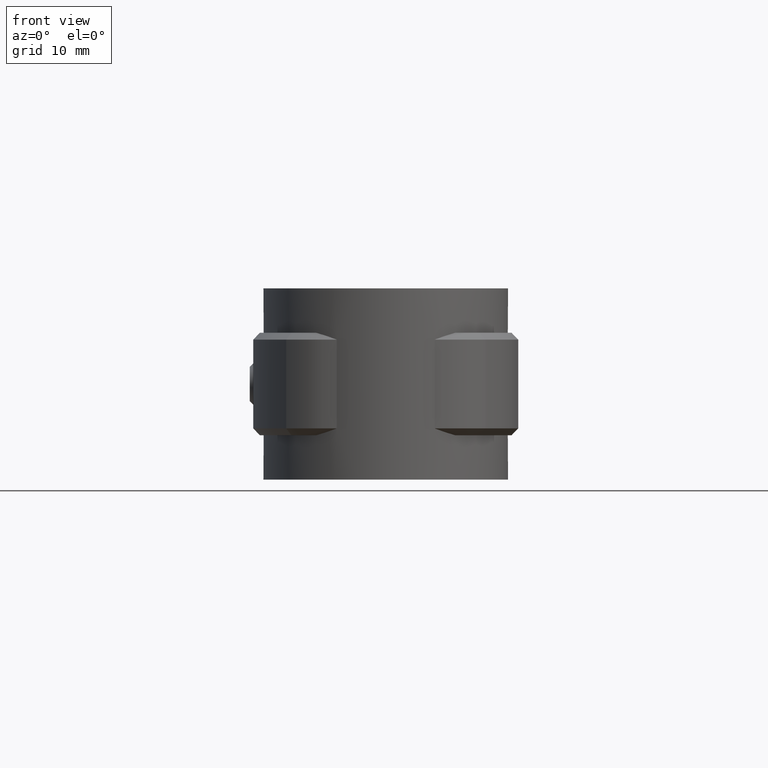
[diagram: clean part render]
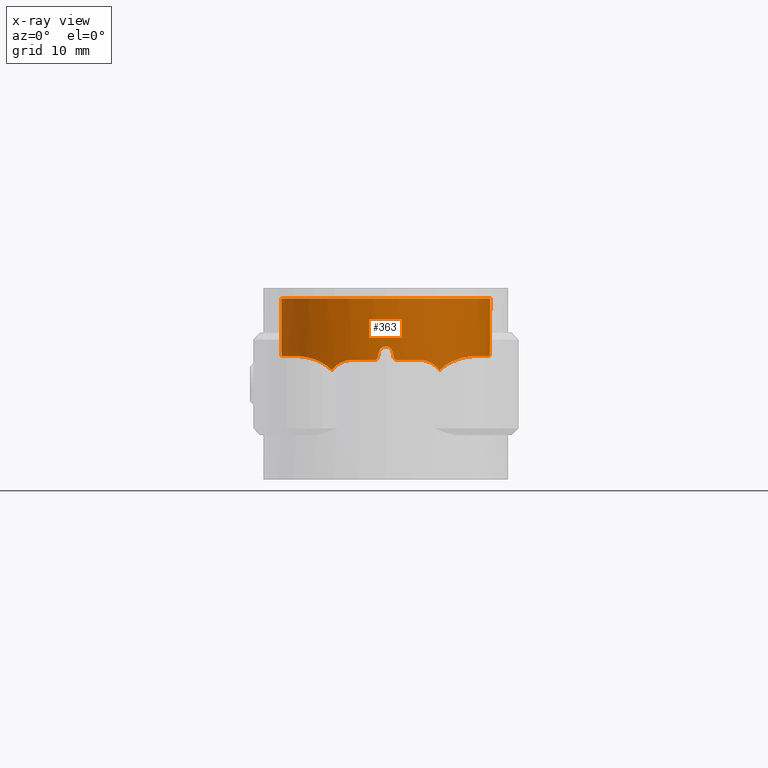
[diagram: x-ray — body ghosted, one internal face saturated and labeled with its STEP entity id]
A machine part, front view, then the same camera in x-ray: the body is ghosted and one INTERNAL B-rep face — a face not visible from any outside direction — is saturated and labeled: STEP entity #363.
In plain terms, the highlighted cylindrical surface (partial cylindrical patch) has radius 15.3 mm, axis along (0, 0, 1).
Its self-contained STEP definition (entity closure, byte-faithful):
#363 = ADVANCED_FACE( '', ( #689 ), #690, .T. );
#689 = FACE_OUTER_BOUND( '', #1386, .T. );
#690 = CYLINDRICAL_SURFACE( '', #1387, 15.3000000000000 );
#1386 = EDGE_LOOP( '', ( #2599, #2600, #2601, #2602, #2603, #2604, #2605, #2606, #2607, #2608, #2609, #2610, #2611, #2612, #2613, #2614 ) );
#1387 = AXIS2_PLACEMENT_3D( '', #2615, #2616, #2617 );
#2599 = ORIENTED_EDGE( '', *, *, #5970, .F. );
#2600 = ORIENTED_EDGE( '', *, *, #5971, .F. );
#2601 = ORIENTED_EDGE( '', *, *, #5972, .F. );
#2602 = ORIENTED_EDGE( '', *, *, #5973, .F. );
#2603 = ORIENTED_EDGE( '', *, *, #5974, .F. );
#2604 = ORIENTED_EDGE( '', *, *, #5975, .T. );
#2605 = ORIENTED_EDGE( '', *, *, #5976, .F. );
#2606 = ORIENTED_EDGE( '', *, *, #5977, .F. );
#2607 = ORIENTED_EDGE( '', *, *, #5978, .F. );
#2608 = ORIENTED_EDGE( '', *, *, #5979, .F. );
#2609 = ORIENTED_EDGE( '', *, *, #5980, .F. );
#2610 = ORIENTED_EDGE( '', *, *, #5981, .F. );
#2611 = ORIENTED_EDGE( '', *, *, #5982, .F. );
#2612 = ORIENTED_EDGE( '', *, *, #5983, .F. );
#2613 = ORIENTED_EDGE( '', *, *, #5984, .F. );
#2614 = ORIENTED_EDGE( '', *, *, #5985, .F. );
#2615 = CARTESIAN_POINT( '', ( 0.000000000000000, 0.000000000000000, 0.000000000000000 ) );
#2616 = DIRECTION( '', ( 0.000000000000000, 0.000000000000000, 1.00000000000000 ) );
#2617 = DIRECTION( '', ( 1.00000000000000, -6.12303176911189E-017, 0.000000000000000 ) );
#5970 = EDGE_CURVE( '', #6879, #6880, #6881, .T. );
#5971 = EDGE_CURVE( '', #6882, #6879, #6883, .T. );
#5972 = EDGE_CURVE( '', #6884, #6882, #6885, .T. );
#5973 = EDGE_CURVE( '', #6886, #6884, #6887, .T. );
#5974 = EDGE_CURVE( '', #6888, #6886, #6889, .F. );
#5975 = EDGE_CURVE( '', #6888, #6890, #6891, .T. );
#5976 = EDGE_CURVE( '', #6892, #6890, #6893, .T. );
#5977 = EDGE_CURVE( '', #6894, #6892, #6895, .T. );
#5978 = EDGE_CURVE( '', #6896, #6894, #6897, .T. );
#5979 = EDGE_CURVE( '', #6898, #6896, #6899, .T. );
#5980 = EDGE_CURVE( '', #6900, #6898, #6901, .T. );
#5981 = EDGE_CURVE( '', #6902, #6900, #6903, .T. );
#5982 = EDGE_CURVE( '', #6904, #6902, #6905, .T. );
#5983 = EDGE_CURVE( '', #6906, #6904, #6907, .T. );
#5984 = EDGE_CURVE( '', #6908, #6906, #6909, .T. );
#5985 = EDGE_CURVE( '', #6880, #6908, #6910, .T. );
#6879 = VERTEX_POINT( '', #8393 );
#6880 = VERTEX_POINT( '', #8394 );
#6881 = B_SPLINE_CURVE_WITH_KNOTS( '', 3, ( #8395, #8396, #8397, #8398, #8399, #8400, #8401, #8402, #8403, #8404 ), .UNSPECIFIED., .F., .F., ( 4, 2, 2, 2, 4 ), ( 0.00793069399882955, 0.00882965665763709, 0.00972861931644463, 0.0106275819752522, 0.0115265446340597 ), .UNSPECIFIED. );
#6882 = VERTEX_POINT( '', #8405 );
#6883 = B_SPLINE_CURVE_WITH_KNOTS( '', 3, ( #8406, #8407, #8408, #8409, #8410, #8411, #8412, #8413, #8414, #8415, #8416, #8417, #8418, #8419 ), .UNSPECIFIED., .F., .F., ( 4, 2, 2, 2, 2, 2, 4 ), ( 0.000000000000000, 0.00173545168588772, 0.00347090337177544, 0.00433862921471931, 0.00520635505766317, 0.00607408090060704, 0.00694180674355090 ), .UNSPECIFIED. );
#6884 = VERTEX_POINT( '', #8420 );
#6885 = B_SPLINE_CURVE_WITH_KNOTS( '', 3, ( #8421, #8422, #8423, #8424, #8425, #8426, #8427, #8428, #8429, #8430, #8431, #8432, #8433, #8434, #8435, #8436, #8437, #8438, #8439, #8440, #8441, #8442, #8443, #8444 ), .UNSPECIFIED., .F., .F., ( 4, 2, 2, 2, 2, 2, 2, 2, 2, 2, 2, 4 ), ( 0.000000000000000, 0.00337849067238585, 0.00506773600857877, 0.00675698134477170, 0.00844622668096462, 0.0101354720171575, 0.0135139626895434, 0.0152032080257363, 0.0168924533619292, 0.0202709440343151, 0.0236494347067009, 0.0270279253790868 ), .UNSPECIFIED. );
#6886 = VERTEX_POINT( '', #8445 );
#6887 = LINE( '', #8446, #8447 );
#6888 = VERTEX_POINT( '', #8448 );
#6889 = CIRCLE( '', #8449, 15.3000000000000 );
#6890 = VERTEX_POINT( '', #8450 );
#6891 = LINE( '', #8451, #8452 );
#6892 = VERTEX_POINT( '', #8453 );
#6893 = B_SPLINE_CURVE_WITH_KNOTS( '', 3, ( #8454, #8455, #8456, #8457, #8458, #8459, #8460, #8461, #8462, #8463, #8464, #8465, #8466, #8467, #8468, #8469, #8470, #8471, #8472, #8473, #8474, #8475, #8476, #8477 ), .UNSPECIFIED., .F., .F., ( 4, 2, 2, 2, 2, 2, 2, 2, 2, 2, 2, 4 ), ( 0.000000000000000, 0.00337848974913548, 0.00506773462370322, 0.00675697949827095, 0.00844622437283869, 0.0101354692474064, 0.0135139589965419, 0.0152032038711096, 0.0168924487456774, 0.0202709384948129, 0.0236494282439483, 0.0270279179930838 ), .UNSPECIFIED. );
#6894 = VERTEX_POINT( '', #8478 );
#6895 = B_SPLINE_CURVE_WITH_KNOTS( '', 3, ( #8479, #8480, #8481, #8482, #8483, #8484, #8485, #8486, #8487, #8488, #8489, #8490, #8491, #8492, #8493, #8494 ), .UNSPECIFIED., .F., .F., ( 4, 2, 2, 2, 2, 2, 2, 4 ), ( 0.0115037032813335, 0.0123705324741521, 0.0132373616669708, 0.0141041908597894, 0.0149710200526081, 0.0158378492454268, 0.0167046784382454, 0.0184383368238828 ), .UNSPECIFIED. );
#6896 = VERTEX_POINT( '', #8495 );
#6897 = B_SPLINE_CURVE_WITH_KNOTS( '', 3, ( #8496, #8497, #8498, #8499, #8500, #8501, #8502, #8503, #8504, #8505 ), .UNSPECIFIED., .F., .F., ( 4, 2, 2, 2, 4 ), ( 3.12731722069275E-018, 0.000902552391410097, 0.00180510478282019, 0.00270765717423028, 0.00361020956564038 ), .UNSPECIFIED. );
#6898 = VERTEX_POINT( '', #8506 );
#6899 = CIRCLE( '', #8507, 15.3000000000000 );
#6900 = VERTEX_POINT( '', #8508 );
#6901 = B_SPLINE_CURVE_WITH_KNOTS( '', 3, ( #8509, #8510, #8511, #8512, #8513, #8514 ), .UNSPECIFIED., .F., .F., ( 4, 2, 4 ), ( 2.04566856771261E-018, 0.000336655613353345, 0.000673311226706687 ), .UNSPECIFIED. );
#6902 = VERTEX_POINT( '', #8515 );
#6903 = ELLIPSE( '', #8516, 69.7000711111876, 15.3000000000000 );
#6904 = VERTEX_POINT( '', #8517 );
#6905 = B_SPLINE_CURVE_WITH_KNOTS( '', 3, ( #8518, #8519, #8520, #8521, #8522, #8523, #8524, #8525, #8526, #8527 ), .UNSPECIFIED., .F., .F., ( 4, 2, 2, 2, 4 ), ( 0.000000000000000, 0.000671750243631357, 0.00134350048726271, 0.00201525073089407, 0.00268700097452543 ), .UNSPECIFIED. );
#6906 = VERTEX_POINT( '', #8528 );
#6907 = ELLIPSE( '', #8529, 69.7000355555817, 15.3000000000000 );
#6908 = VERTEX_POINT( '', #8530 );
#6909 = B_SPLINE_CURVE_WITH_KNOTS( '', 3, ( #8531, #8532, #8533, #8534, #8535, #8536 ), .UNSPECIFIED., .F., .F., ( 4, 2, 4 ), ( 8.20849171219253E-018, 0.000336638865399035, 0.000673277730798061 ), .UNSPECIFIED. );
#6910 = CIRCLE( '', #8537, 15.3000000000000 );
#8393 = CARTESIAN_POINT( '', ( 7.87194993485722, -13.1195428359036, -10.4995241636867 ) );
#8394 = CARTESIAN_POINT( '', ( 5.00000000000000, -14.4599446748596, -9.00000000000000 ) );
#8395 = CARTESIAN_POINT( '', ( 7.87194993485716, -13.1195428359033, -10.4995241636866 ) );
#8396 = CARTESIAN_POINT( '', ( 7.70865094498074, -13.2175250208619, -10.2650866789519 ) );
#8397 = CARTESIAN_POINT( '', ( 7.51776101368131, -13.3277933746706, -10.0528629646949 ) );
#8398 = CARTESIAN_POINT( '', ( 7.09897570629181, -13.5554915373150, -9.68541278764146 ) );
#8399 = CARTESIAN_POINT( '', ( 6.86622150503558, -13.6754961272244, -9.52611791614011 ) );
#8400 = CARTESIAN_POINT( '', ( 6.37510165947340, -13.9112282316595, -9.26954294554568 ) );
#8401 = CARTESIAN_POINT( '', ( 6.11639506588634, -14.0273663019708, -9.17091319151234 ) );
#8402 = CARTESIAN_POINT( '', ( 5.57027714878039, -14.2530455151676, -9.03532961233526 ) );
#8403 = CARTESIAN_POINT( '', ( 5.28764682543656, -14.3604813532825, -8.99999999999998 ) );
#8404 = CARTESIAN_POINT( '', ( 5.00000000000000, -14.4599446748596, -8.99999999999997 ) );
#8405 = CARTESIAN_POINT( '', ( 12.6110727878860, -8.66318897050281, -8.45031892622464 ) );
#8406 = CARTESIAN_POINT( '', ( 12.6110727878860, -8.66318897050281, -8.45031892622464 ) );
#8407 = CARTESIAN_POINT( '', ( 12.2787524010647, -9.14695038923338, -8.46550990858840 ) );
#8408 = CARTESIAN_POINT( '', ( 11.9235910034446, -9.60450669304155, -8.51116083134943 ) );
#8409 = CARTESIAN_POINT( '', ( 11.1715127557968, -10.4697599772474, -8.66791811163752 ) );
#8410 = CARTESIAN_POINT( '', ( 10.7745882532920, -10.8773725679151, -8.77941280152085 ) );
#8411 = CARTESIAN_POINT( '', ( 10.1511190736469, -11.4509618833930, -9.01216554269244 ) );
#8412 = CARTESIAN_POINT( '', ( 9.93894791792869, -11.6354027845567, -9.10085375859678 ) );
#8413 = CARTESIAN_POINT( '', ( 9.51537023707728, -11.9842819111331, -9.30141862969721 ) );
#8414 = CARTESIAN_POINT( '', ( 9.30295281880300, -12.1496614772324, -9.41356554006848 ) );
#8415 = CARTESIAN_POINT( '', ( 8.87977396000486, -12.4622959192695, -9.66695585382485 ) );
#8416 = CARTESIAN_POINT( '', ( 8.66770891528999, -12.6103831388595, -9.80908779401239 ) );
#8417 = CARTESIAN_POINT( '', ( 8.25637209485775, -12.8834490948769, -10.1274435297160 ) );
#8418 = CARTESIAN_POINT( '', ( 8.05799841358993, -13.0079105688069, -10.3025626028772 ) );
#8419 = CARTESIAN_POINT( '', ( 7.87194993485673, -13.1195428359036, -10.4995241636863 ) );
#8420 = CARTESIAN_POINT( '', ( 5.95508982035928, 14.0935057821485, -8.45226729138235 ) );
#8421 = CARTESIAN_POINT( '', ( 5.95508982035928, 14.0935057821485, -8.45226729138233 ) );
#8422 = CARTESIAN_POINT( '', ( 7.00540709996952, 13.6497032367324, -8.45390515077287 ) );
#8423 = CARTESIAN_POINT( '', ( 7.98833917484386, 13.0977071765000, -8.45433456352181 ) );
#8424 = CARTESIAN_POINT( '', ( 9.36474915869099, 12.1123840431278, -8.45230022380100 ) );
#8425 = CARTESIAN_POINT( '', ( 9.80897304357575, 11.7557295501313, -8.45130217704716 ) );
#8426 = CARTESIAN_POINT( '', ( 10.6542534858052, 10.9954541554968, -8.45011867942905 ) );
#8427 = CARTESIAN_POINT( '', ( 11.0522173135953, 10.5950394562952, -8.45024402883691 ) );
#8428 = CARTESIAN_POINT( '', ( 11.8003331836054, 9.75492211057010, -8.45109332326582 ) );
#8429 = CARTESIAN_POINT( '', ( 12.1504813178563, 9.31521621707749, -8.45168265912335 ) );
#8430 = CARTESIAN_POINT( '', ( 12.8027128447681, 8.39630831025688, -8.45228185336801 ) );
#8431 = CARTESIAN_POINT( '', ( 13.1058013748109, 7.91527764298565, -8.45228810635509 ) );
#8432 = CARTESIAN_POINT( '', ( 13.9332426752597, 6.42256552465585, -8.45140198263701 ) );
#8433 = CARTESIAN_POINT( '', ( 14.3656891301544, 5.38385352930454, -8.44980454309737 ) );
#8434 = CARTESIAN_POINT( '', ( 14.8408836696453, 3.76236596523588, -8.45110774447446 ) );
#8435 = CARTESIAN_POINT( '', ( 14.9703352046328, 3.20986824873691, -8.45178080891350 ) );
#8436 = CARTESIAN_POINT( '', ( 15.1675027346726, 2.08831298109673, -8.45256434646519 ) );
#8437 = CARTESIAN_POINT( '', ( 15.2339943467144, 1.52711420599460, -8.45266538063568 ) );
#8438 = CARTESIAN_POINT( '', ( 15.3405272523831, -0.157701726061642, -8.45194690359650 ) );
#8439 = CARTESIAN_POINT( '', ( 15.2886124364511, -1.28348506083063, -8.44984870711149 ) );
#8440 = CARTESIAN_POINT( '', ( 14.9297054039767, -3.53452976842064, -8.45101732554135 ) );
#8441 = CARTESIAN_POINT( '', ( 14.6293632335126, -4.61942105654775, -8.45276188964351 ) );
#8442 = CARTESIAN_POINT( '', ( 13.7956940440721, -6.71089750764227, -8.45205521599975 ) );
#8443 = CARTESIAN_POINT( '', ( 13.2566961461038, -7.72334993527380, -8.44956537244370 ) );
#8444 = CARTESIAN_POINT( '', ( 12.6110727878860, -8.66318897050281, -8.45031892622464 ) );
#8445 = CARTESIAN_POINT( '', ( 5.95508982035929, 14.0935057821485, 0.000000000000000 ) );
#8446 = CARTESIAN_POINT( '', ( 5.95508982035928, 14.0935057821485, 0.000000000000000 ) );
#8447 = VECTOR( '', #11951, 1000.00000000000 );
#8448 = CARTESIAN_POINT( '', ( -5.95508982035928, 14.0935057821485, 0.000000000000000 ) );
#8449 = AXIS2_PLACEMENT_3D( '', #11952, #11953, #11954 );
#8450 = CARTESIAN_POINT( '', ( -5.95508982035929, 14.0935057821485, -8.45226729138233 ) );
#8451 = CARTESIAN_POINT( '', ( -5.95508982035929, 14.0935057821485, 0.000000000000000 ) );
#8452 = VECTOR( '', #11955, 1000.00000000000 );
#8453 = CARTESIAN_POINT( '', ( -12.6110727878862, -8.66318897050286, -8.45031892622483 ) );
#8454 = CARTESIAN_POINT( '', ( -12.6110727878860, -8.66318897050281, -8.45031892622465 ) );
#8455 = CARTESIAN_POINT( '', ( -13.2566959368118, -7.72335023994181, -8.44956537268799 ) );
#8456 = CARTESIAN_POINT( '', ( -13.7872519999963, -6.72868324598035, -8.45203498790222 ) );
#8457 = CARTESIAN_POINT( '', ( -14.4157629811428, -5.15695177944743, -8.45258721794598 ) );
#8458 = CARTESIAN_POINT( '', ( -14.5977817794948, -4.61713079014230, -8.45237562317452 ) );
#8459 = CARTESIAN_POINT( '', ( -14.9001468151511, -3.52118651905475, -8.45143865004645 ) );
#8460 = CARTESIAN_POINT( '', ( -15.0196155399717, -2.96943056561901, -8.45072674235892 ) );
#8461 = CARTESIAN_POINT( '', ( -15.1971057085317, -1.85858734965746, -8.45014450833671 ) );
#8462 = CARTESIAN_POINT( '', ( -15.2551221059123, -1.29949949571398, -8.45053515373791 ) );
#8463 = CARTESIAN_POINT( '', ( -15.3093824020463, -0.173953653516127, -8.45159166864484 ) );
#8464 = CARTESIAN_POINT( '', ( -15.3054876661238, 0.394585777385038, -8.45218127623429 ) );
#8465 = CARTESIAN_POINT( '', ( -15.1981365292448, 2.09791529208462, -8.45291107734749 ) );
#8466 = CARTESIAN_POINT( '', ( -15.0026932763093, 3.20594681079866, -8.45156493687628 ) );
#8467 = CARTESIAN_POINT( '', ( -14.5292207707281, 4.82793630028559, -8.45024644846663 ) );
#8468 = CARTESIAN_POINT( '', ( -14.3405455744282, 5.36310958643268, -8.45027416187245 ) );
#8469 = CARTESIAN_POINT( '', ( -13.9022635465869, 6.41414531247766, -8.45111113771660 ) );
#8470 = CARTESIAN_POINT( '', ( -13.6558614780494, 6.92272416588369, -8.45169797640167 ) );
#8471 = CARTESIAN_POINT( '', ( -12.8377048184716, 8.39940386766398, -8.45257732633630 ) );
#8472 = CARTESIAN_POINT( '', ( -12.1873217869345, 9.31977448680832, -8.45153540932948 ) );
#8473 = CARTESIAN_POINT( '', ( -10.6719581828801, 11.0226275164369, -8.44980959461245 ) );
#8474 = CARTESIAN_POINT( '', ( -9.83433755861948, 11.7746813443322, -8.45159435834309 ) );
#8475 = CARTESIAN_POINT( '', ( -8.00503165778895, 13.0872756574940, -8.45432152731595 ) );
#8476 = CARTESIAN_POINT( '', ( -7.00540523774510, 13.6497040235993, -8.45390514786892 ) );
#8477 = CARTESIAN_POINT( '', ( -5.95508982035929, 14.0935057821485, -8.45226729138233 ) );
#8478 = CARTESIAN_POINT( '', ( -7.87194993485690, -13.1195428359035, -10.4995241636861 ) );
#8479 = CARTESIAN_POINT( '', ( -7.87194993485686, -13.1195428359035, -10.4995241636861 ) );
#8480 = CARTESIAN_POINT( '', ( -8.05919526003263, -13.0071924404853, -10.3012955527782 ) );
#8481 = CARTESIAN_POINT( '', ( -8.25767841672519, -12.8825677442839, -10.1264761198273 ) );
#8482 = CARTESIAN_POINT( '', ( -8.66517556422431, -12.6120790102696, -9.81100499907998 ) );
#8483 = CARTESIAN_POINT( '', ( -8.87465321056828, -12.4659654054786, -9.67022744171875 ) );
#8484 = CARTESIAN_POINT( '', ( -9.29964199274666, -12.1522188058470, -9.41534662994498 ) );
#8485 = CARTESIAN_POINT( '', ( -9.51330828372922, -11.9858850727361, -9.30251173288930 ) );
#8486 = CARTESIAN_POINT( '', ( -9.93469889429310, -11.6389962349783, -9.10275065095695 ) );
#8487 = CARTESIAN_POINT( '', ( -10.1433462549369, -11.4577731096735, -9.01537056019381 ) );
#8488 = CARTESIAN_POINT( '', ( -10.5548460057715, -11.0798584681732, -8.86115759596637 ) );
#8489 = CARTESIAN_POINT( '', ( -10.7577076777747, -10.8831667232780, -8.79434846855494 ) );
#8490 = CARTESIAN_POINT( '', ( -11.1564367399365, -10.4740398927498, -8.67889913708773 ) );
#8491 = CARTESIAN_POINT( '', ( -11.3528453658312, -10.2609308359991, -8.63024747956064 ) );
#8492 = CARTESIAN_POINT( '', ( -11.9228704760941, -9.60574607705254, -8.51106576425916 ) );
#8493 = CARTESIAN_POINT( '', ( -12.2793195777272, -9.14612474567432, -8.46548398188929 ) );
#8494 = CARTESIAN_POINT( '', ( -12.6110727878860, -8.66318897050281, -8.45031892622464 ) );
#8495 = CARTESIAN_POINT( '', ( -5.00000000000005, -14.4599446748596, -9.00000000000000 ) );
#8496 = CARTESIAN_POINT( '', ( -5.00000000000005, -14.4599446748596, -8.99999999999997 ) );
#8497 = CARTESIAN_POINT( '', ( -5.28862160162935, -14.3601442924518, -8.99999999999997 ) );
#8498 = CARTESIAN_POINT( '', ( -5.56828150182051, -14.2537913109440, -9.03513187627045 ) );
#8499 = CARTESIAN_POINT( '', ( -6.11141724791708, -14.0295012328066, -9.16938343828338 ) );
#8500 = CARTESIAN_POINT( '', ( -6.37685529492274, -13.9104300211604, -9.27025884045793 ) );
#8501 = CARTESIAN_POINT( '', ( -6.86845294857195, -13.6743811896275, -9.52748556945979 ) );
#8502 = CARTESIAN_POINT( '', ( -7.09815732673176, -13.5559720277903, -9.68444656839188 ) );
#8503 = CARTESIAN_POINT( '', ( -7.52207143949557, -13.3254139264938, -10.0568952236879 ) );
#8504 = CARTESIAN_POINT( '', ( -7.70928665840535, -13.2171435819418, -10.2659993303797 ) );
#8505 = CARTESIAN_POINT( '', ( -7.87194993485690, -13.1195428359035, -10.4995241636861 ) );
#8506 = CARTESIAN_POINT( '', ( -1.65000000000003, -15.2107692113187, -9.00000000000000 ) );
#8507 = AXIS2_PLACEMENT_3D( '', #11956, #11957, #11958 );
#8508 = CARTESIAN_POINT( '', ( -1.16219512100914, -15.2557957019850, -8.60975609337373 ) );
#8509 = CARTESIAN_POINT( '', ( -1.16219512100915, -15.2557957019850, -8.60975609337372 ) );
#8510 = CARTESIAN_POINT( '', ( -1.18718019133930, -15.2538923252354, -8.72080085484746 ) );
#8511 = CARTESIAN_POINT( '', ( -1.24937339150256, -15.2491638273020, -8.81997356472241 ) );
#8512 = CARTESIAN_POINT( '', ( -1.42680663648856, -15.2335863842157, -8.96159450174561 ) );
#8513 = CARTESIAN_POINT( '', ( -1.53684210786510, -15.2230441015250, -8.99999999999994 ) );
#8514 = CARTESIAN_POINT( '', ( -1.65000000000003, -15.2107692113187, -8.99999999999994 ) );
#8515 = CARTESIAN_POINT( '', ( -0.975610000000025, -15.2688632559173, -7.78048800000004 ) );
#8516 = AXIS2_PLACEMENT_3D( '', #11959, #11960, #11961 );
#8517 = CARTESIAN_POINT( '', ( 0.975609757981813, -15.2688632713811, -7.78048781325256 ) );
#8518 = CARTESIAN_POINT( '', ( 0.975609757981816, -15.2688632713811, -7.78048781325256 ) );
#8519 = CARTESIAN_POINT( '', ( 0.925753256865699, -15.2720488712600, -7.55890345399290 ) );
#8520 = CARTESIAN_POINT( '', ( 0.801992275849189, -15.2799961721199, -7.36098178575223 ) );
#8521 = CARTESIAN_POINT( '', ( 0.447466370338899, -15.2944842501451, -7.07733552221451 ) );
#8522 = CARTESIAN_POINT( '', ( 0.227143439189080, -15.3000000283266, -6.99999958588352 ) );
#8523 = CARTESIAN_POINT( '', ( -0.227147255240435, -15.2999999716731, -7.00000040725265 ) );
#8524 = CARTESIAN_POINT( '', ( -0.447547321265038, -15.2944813833536, -7.07738605412701 ) );
#8525 = CARTESIAN_POINT( '', ( -0.801987349730743, -15.2799959319822, -7.36099176213694 ) );
#8526 = CARTESIAN_POINT( '', ( -0.925753523622188, -15.2720488550089, -7.55890355263458 ) );
#8527 = CARTESIAN_POINT( '', ( -0.975610000000025, -15.2688632559173, -7.78048800000004 ) );
#8528 = CARTESIAN_POINT( '', ( 1.16219499999999, -15.2557957112035, -8.60975599999999 ) );
#8529 = AXIS2_PLACEMENT_3D( '', #11962, #11963, #11964 );
#8530 = CARTESIAN_POINT( '', ( 1.64999999999995, -15.2107692113187, -9.00000000000000 ) );
#8531 = CARTESIAN_POINT( '', ( 1.64999999999995, -15.2107692113187, -8.99999999999995 ) );
#8532 = CARTESIAN_POINT( '', ( 1.53684205018555, -15.2230441077818, -9.00000000048562 ) );
#8533 = CARTESIAN_POINT( '', ( 1.42680454084002, -15.2335865225725, -8.96158994493370 ) );
#8534 = CARTESIAN_POINT( '', ( 1.24939104558132, -15.2491623230159, -8.81999061126029 ) );
#8535 = CARTESIAN_POINT( '', ( 1.18718009144230, -15.2538923330449, -8.72080085308014 ) );
#8536 = CARTESIAN_POINT( '', ( 1.16219499999999, -15.2557957112035, -8.60975599999999 ) );
#8537 = AXIS2_PLACEMENT_3D( '', #11965, #11966, #11967 );
#11951 = DIRECTION( '', ( 0.000000000000000, 0.000000000000000, -1.00000000000000 ) );
#11952 = CARTESIAN_POINT( '', ( 0.000000000000000, 0.000000000000000, 0.000000000000000 ) );
#11953 = DIRECTION( '', ( 0.000000000000000, 0.000000000000000, -1.00000000000000 ) );
#11954 = DIRECTION( '', ( -1.00000000000000, 0.000000000000000, 0.000000000000000 ) );
#11955 = DIRECTION( '', ( 0.000000000000000, 0.000000000000000, -1.00000000000000 ) );
#11956 = CARTESIAN_POINT( '', ( 0.000000000000000, 0.000000000000000, -9.00000000000000 ) );
#11957 = DIRECTION( '', ( 6.12303176911189E-017, -3.05720745347993E-016, -1.00000000000000 ) );
#11958 = DIRECTION( '', ( 0.000000000000000, 1.00000000000000, -3.05720745347993E-016 ) );
#11959 = CARTESIAN_POINT( '', ( 0.000000000000000, 0.000000000000000, -3.44443890776447 ) );
#11960 = DIRECTION( '', ( 0.975609806487711, -1.18038009681476E-016, -0.219511971165610 ) );
#11961 = DIRECTION( '', ( -0.219511971165610, 2.65585237103421E-017, -0.975609806487711 ) );
#11962 = CARTESIAN_POINT( '', ( 0.000000000000000, 0.000000000000000, -3.44444212055030 ) );
#11963 = DIRECTION( '', ( -0.975609781292647, -1.61807527429124E-017, -0.219512083143762 ) );
#11964 = DIRECTION( '', ( 0.219512083143762, 3.64066741594651E-018, -0.975609781292647 ) );
#11965 = CARTESIAN_POINT( '', ( 0.000000000000000, 0.000000000000000, -9.00000000000000 ) );
#11966 = DIRECTION( '', ( 6.12303176911189E-017, -3.05720745347993E-016, -1.00000000000000 ) );
#11967 = DIRECTION( '', ( 0.000000000000000, 1.00000000000000, -3.05720745347993E-016 ) );